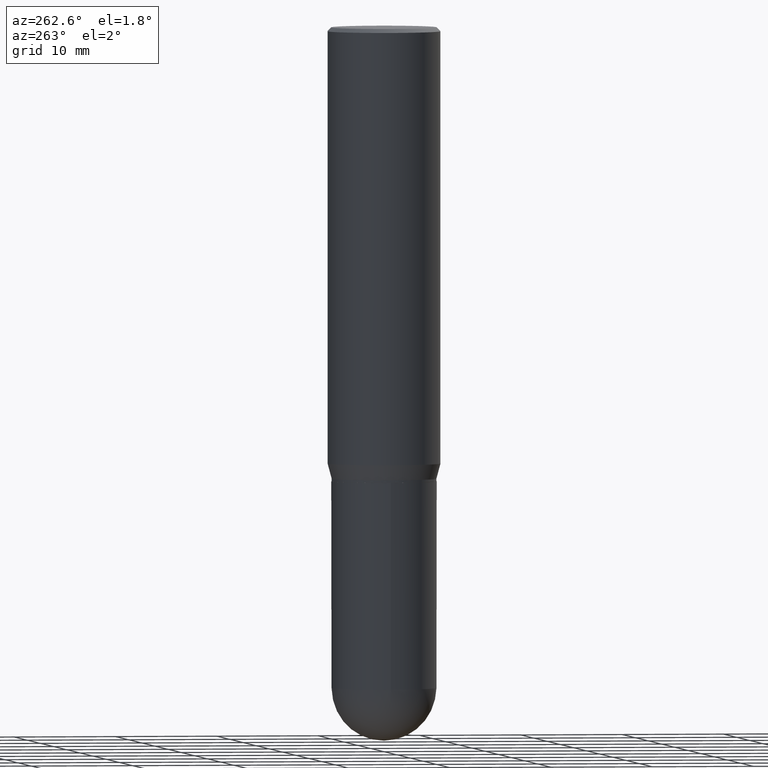
[diagram: clean part render]
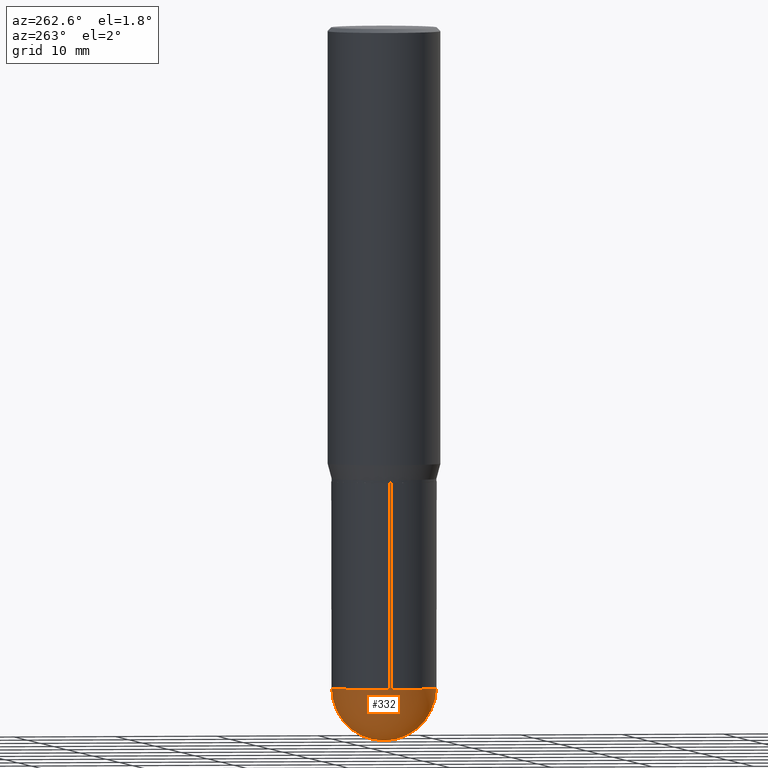
[diagram: same view with one face highlighted and labeled with its STEP entity id]
A machine part, auxiliary view. The second image highlights one B-rep face of the part: STEP entity #332.
In plain terms, the highlighted spherical surface has radius 5.1587 mm.
Its self-contained STEP definition (entity closure, byte-faithful):
#9 = DIRECTION ( 'NONE',  ( -1.000000000000000000, 7.105427357601001070E-15, -4.926315508542082329E-29 ) ) ;
#29 = VERTEX_POINT ( 'NONE', #159 ) ;
#42 = AXIS2_PLACEMENT_3D ( 'NONE', #353, #277, #243 ) ;
#45 = EDGE_CURVE ( 'NONE', #491, #29, #367, .T. ) ;
#54 = CARTESIAN_POINT ( 'NONE',  ( 6.210996075139691695E-29, -8.917326398390289827E-15, -2.546899999999999942 ) ) ;
#56 = DIRECTION ( 'NONE',  ( 6.982962677686266711E-15, 1.000000000000000000, -2.690150658458162309E-15 ) ) ;
#85 = EDGE_CURVE ( 'NONE', #29, #110, #153, .T. ) ;
#96 = DIRECTION ( 'NONE',  ( -1.000000000000000000, 6.982962677686266711E-15, -4.883557194083112901E-29 ) ) ;
#110 = VERTEX_POINT ( 'NONE', #396 ) ;
#120 = CIRCLE ( 'NONE', #199, 0.2030999999999999472 ) ;
#137 = CARTESIAN_POINT ( 'NONE',  ( 6.210996075139691695E-29, -8.917326398390289827E-15, -2.546899999999999942 ) ) ;
#153 = CIRCLE ( 'NONE', #42, 0.2031000000000000583 ) ;
#158 = VERTEX_POINT ( 'NONE', #349 ) ;
#159 = CARTESIAN_POINT ( 'NONE',  ( 1.418239719838142898E-15, 0.2030999999999910932, -2.546900000000000830 ) ) ;
#168 = AXIS2_PLACEMENT_3D ( 'NONE', #137, #96, #56 ) ;
#182 = ORIENTED_EDGE ( 'NONE', *, *, #209, .T. ) ;
#199 = AXIS2_PLACEMENT_3D ( 'NONE', #54, #9, #255 ) ;
#209 = EDGE_CURVE ( 'NONE', #491, #158, #120, .T. ) ;
#226 = ORIENTED_EDGE ( 'NONE', *, *, #45, .F. ) ;
#230 = DIRECTION ( 'NONE',  ( 1.000000000000000000, -6.982962677686262766E-15, 0.000000000000000000 ) ) ;
#243 = DIRECTION ( 'NONE',  ( 1.000000000000000000, -6.982962677686262766E-15, 0.000000000000000000 ) ) ;
#255 = DIRECTION ( 'NONE',  ( -7.105427357601001070E-15, -1.000000000000000000, 0.000000000000000000 ) ) ;
#261 = DIRECTION ( 'NONE',  ( -2.445468806185136597E-29, 3.491481338843145583E-15, 1.000000000000000000 ) ) ;
#263 = ORIENTED_EDGE ( 'NONE', *, *, #494, .F. ) ;
#266 = CARTESIAN_POINT ( 'NONE',  ( 6.716355003342508555E-29, -9.614009970063991023E-15, -2.750000000000000000 ) ) ;
#269 = EDGE_LOOP ( 'NONE', ( #226, #182, #263, #451 ) ) ;
#277 = DIRECTION ( 'NONE',  ( -2.445468806185136597E-29, 3.491481338843145583E-15, 1.000000000000000000 ) ) ;
#281 = CIRCLE ( 'NONE', #472, 0.2031000000000000583 ) ;
#287 = AXIS2_PLACEMENT_3D ( 'NONE', #476, #318, #439 ) ;
#318 = DIRECTION ( 'NONE',  ( 1.000000000000000000, -6.982962677686265922E-15, 4.883557194083112340E-29 ) ) ;
#327 = FACE_OUTER_BOUND ( 'NONE', #269, .T. ) ;
#332 = ADVANCED_FACE ( 'NONE', ( #327 ), #486, .T. ) ;
#349 = CARTESIAN_POINT ( 'NONE',  ( -1.443112296328700980E-15, -0.2031000000000088845, -2.546899999999999498 ) ) ;
#353 = CARTESIAN_POINT ( 'NONE',  ( 6.228364502472924746E-29, -8.892453821899607499E-15, -2.546899999999999942 ) ) ;
#367 = CIRCLE ( 'NONE', #287, 0.2030999999999999472 ) ;
#384 = CARTESIAN_POINT ( 'NONE',  ( 6.228364502472924746E-29, -8.892453821899607499E-15, -2.546899999999999942 ) ) ;
#396 = CARTESIAN_POINT ( 'NONE',  ( -0.2031000000000000583, -6.058160786108791010E-15, -2.546899999999999942 ) ) ;
#439 = DIRECTION ( 'NONE',  ( 6.982962677686266711E-15, 1.000000000000000000, 0.000000000000000000 ) ) ;
#451 = ORIENTED_EDGE ( 'NONE', *, *, #85, .F. ) ;
#472 = AXIS2_PLACEMENT_3D ( 'NONE', #384, #261, #230 ) ;
#476 = CARTESIAN_POINT ( 'NONE',  ( 6.210996075139691695E-29, -8.917326398390289827E-15, -2.546899999999999942 ) ) ;
#486 = SPHERICAL_SURFACE ( 'NONE', #168, 0.2030999999999999472 ) ;
#491 = VERTEX_POINT ( 'NONE', #266 ) ;
#494 = EDGE_CURVE ( 'NONE', #110, #158, #281, .T. ) ;